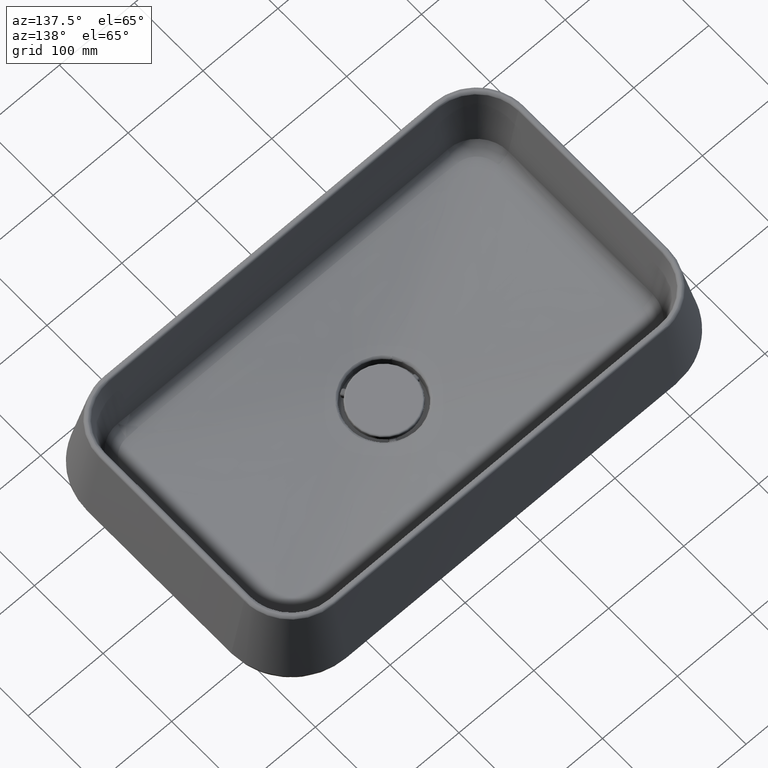
[diagram: clean part render]
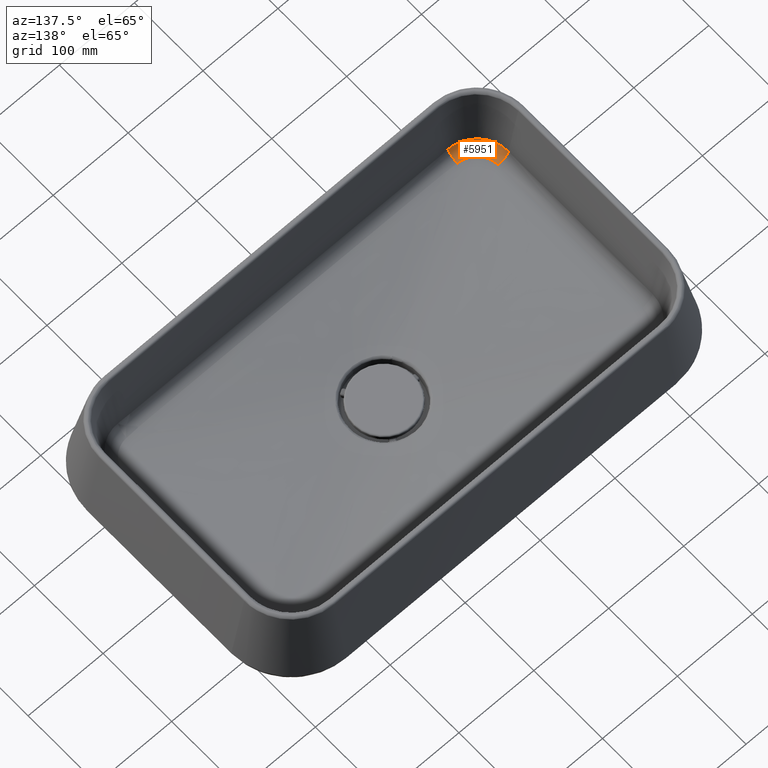
[diagram: same view with one face highlighted and labeled with its STEP entity id]
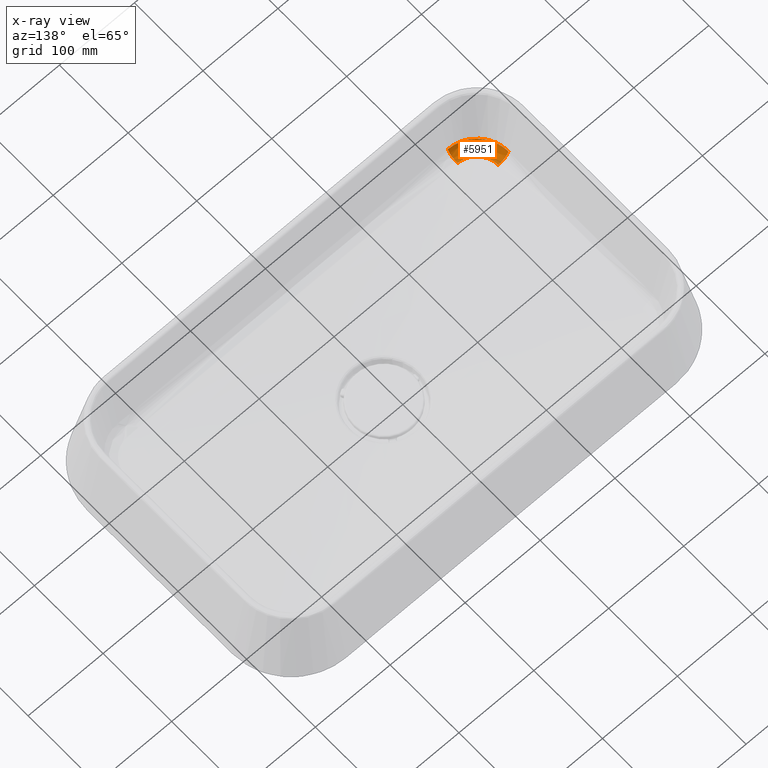
[diagram: x-ray of the same camera — body ghosted, the highlighted face saturated]
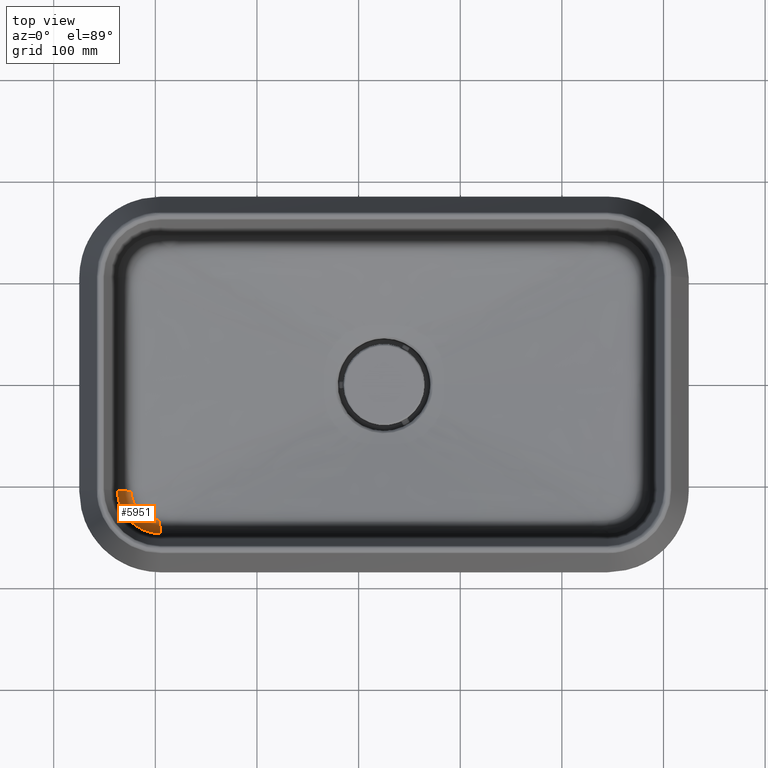
[diagram: same view with one face highlighted and labeled with its STEP entity id]
A machine part, auxiliary view. The second image highlights one B-rep face of the part: STEP entity #5951.
The next image is the same camera in x-ray: the body ghosted, the highlighted face saturated — about 0% of this face is hidden behind the body in this view.
A second angle (top view) of the same face is appended — the face is thin or edge-on in the first view.
In plain terms, the highlighted face is a freeform B-spline surface patch.
Its self-contained STEP definition (entity closure, byte-faithful):
#208 = CARTESIAN_POINT ( 'NONE',  ( 100.0939456887400070, 52.89387457231580925, 21.93821845887429944 ) ) ;
#394 = CARTESIAN_POINT ( 'NONE',  ( 104.3489253185390311, 66.10655205733390005, 9.499880502668668569 ) ) ;
#461 = CARTESIAN_POINT ( 'NONE',  ( 104.4900496643799954, 54.88050602474310580, 10.68974305179930084 ) ) ;
#737 = CARTESIAN_POINT ( 'NONE',  ( 88.86642701142611145, 56.07154558862627880, 22.14436534914068133 ) ) ;
#1097 = CARTESIAN_POINT ( 'NONE',  ( 68.48088802336994263, 73.85753964995247145, 22.34548647760664863 ) ) ;
#1219 = CARTESIAN_POINT ( 'NONE',  ( 99.83690863588098807, 53.12415250317245352, 21.93497582477540320 ) ) ;
#1255 = ORIENTED_EDGE ( 'NONE', *, *, #14023, .F. ) ;
#1337 = CARTESIAN_POINT ( 'NONE',  ( 63.70574184948614516, 86.43931351892953785, 22.32967846739263962 ) ) ;
#1526 =( BOUNDED_CURVE ( )  B_SPLINE_CURVE ( 2, ( #18969, #21077, #20838 ),
 .UNSPECIFIED., .F., .F. ) 
 B_SPLINE_CURVE_WITH_KNOTS ( ( 3, 3 ),
 ( 0.0000000000000000000, 21.48135058712560053 ),
 .UNSPECIFIED. ) 
 CURVE ( )  GEOMETRIC_REPRESENTATION_ITEM ( )  RATIONAL_B_SPLINE_CURVE ( ( 1.000000000000000000, 0.7945275625414980336, 1.000000000000000000 ) ) 
 REPRESENTATION_ITEM ( '' )  );
#1580 = CARTESIAN_POINT ( 'NONE',  ( 63.03646925134162871, 90.84956310242657196, 22.30899613318877073 ) ) ;
#1702 = CARTESIAN_POINT ( 'NONE',  ( 63.50334774395690829, 87.45547082532353045, 22.32569987706909131 ) ) ;
#1758 = CARTESIAN_POINT ( 'NONE',  ( 95.90975975865799796, 67.23920757658079594, 9.783000347813569419 ) ) ;
#2137 = CARTESIAN_POINT ( 'NONE',  ( 76.24335910368587577, 94.83268213099105992, 9.950044693791941341 ) ) ;
#2717 = CARTESIAN_POINT ( 'NONE',  ( 80.60891401675011991, 60.58574310402496366, 22.25443099515818801 ) ) ;
#2735 =( BOUNDED_SURFACE ( )  B_SPLINE_SURFACE ( 2, 3, ( 
 ( #6013, #208, #7754, #13586, #13458, #9878, #21000, #7880, #17420, #22983 ),
 ( #461, #15575, #11857, #23108, #6141, #17789, #18272, #12339, #10608, #23955 ),
 ( #16061, #6631, #23599, #14202, #21737, #19879, #16300, #21624, #10359, #14562 ) ),
 .UNSPECIFIED., .F., .F., .T. ) 
 B_SPLINE_SURFACE_WITH_KNOTS ( ( 3, 3 ),
 ( 4, 1, 1, 1, 1, 1, 1, 4 ),
 ( 0.0000000000000000000, 21.48135058712560053 ),
 ( 588.0338949683419969, 597.5934497710310325, 603.3058128613049576, 609.3277353543110166, 615.3514111535630491, 621.0672197274119526, 626.5407828582680168, 631.0509787103790131 ),
 .UNSPECIFIED. ) 
 GEOMETRIC_REPRESENTATION_ITEM ( )  RATIONAL_B_SPLINE_SURFACE ( (
 ( 1.000000000000000000, 1.000000000000000000, 1.000000000000000000, 0.9999999999999990008, 0.9999999999999980016, 1.000000000000000000, 1.000000000000000000, 0.9999999999999990008, 1.000000000000000000, 1.000000000000000000),
 ( 0.7989810238591299463, 0.7983950872079540462, 0.7968936208703829571, 0.7951651314006470406, 0.7941127352122789862, 0.7935543652856339447, 0.7934813291945530533, 0.7938292711343499786, 0.7942798945050020265, 0.7945275625414980336),
 ( 1.000000000000000000, 1.000000000000000000, 1.000000000000000000, 0.9999999999999990008, 0.9999999999999980016, 1.000000000000000000, 1.000000000000000000, 0.9999999999999990008, 1.000000000000000000, 1.000000000000000000) ) ) 
 REPRESENTATION_ITEM ( '' )  SURFACE ( )  );
#2832 = CARTESIAN_POINT ( 'NONE',  ( 67.17926822852221846, 76.32332914261981216, 22.34764702751154530 ) ) ;
#2956 = CARTESIAN_POINT ( 'NONE',  ( 71.51288546102652788, 69.21631523085801518, 22.33302789975152791 ) ) ;
#3078 = CARTESIAN_POINT ( 'NONE',  ( 66.30408819739065507, 78.22521874896575866, 22.34748736661784108 ) ) ;
#3205 = CARTESIAN_POINT ( 'NONE',  ( 63.03568694733049682, 90.85756583890309912, 22.30895138323814209 ) ) ;
#3499 = CARTESIAN_POINT ( 'NONE',  ( 84.57325487992677893, 74.46036605588930968, 9.976192353328169560 ) ) ;
#4444 = CARTESIAN_POINT ( 'NONE',  ( 64.25556198985715639, 84.09334726962472928, 22.33760642649369643 ) ) ;
#4682 = CARTESIAN_POINT ( 'NONE',  ( 89.00805475640437692, 56.01352554508004999, 22.14214912810558999 ) ) ;
#4801 = CARTESIAN_POINT ( 'NONE',  ( 79.47396314452385013, 61.41466737788644537, 22.26663984095715776 ) ) ;
#5108 = CARTESIAN_POINT ( 'NONE',  ( 76.24335910368587577, 94.83268213099105992, 9.950044693791941341 ) ) ;
#5224 = CARTESIAN_POINT ( 'NONE',  ( 76.26173094074769665, 93.27863251811339751, 9.965763684219519192 ) ) ;
#5371 = EDGE_CURVE ( 'NONE', #6116, #6455, #21749, .T. ) ;
#5408 = CARTESIAN_POINT ( 'NONE',  ( 62.83645563311582549, 94.99999999999958789, 22.28212887665320707 ) ) ;
#5543 = EDGE_CURVE ( 'NONE', #23139, #6116, #13797, .T. ) ;
#5591 = CARTESIAN_POINT ( 'NONE',  ( 78.02498267215119654, 84.59404530176891512, 10.01304561755510036 ) ) ;
#5951 = ADVANCED_FACE ( 'NONE', ( #8261 ), #2735, .T. ) ;
#6013 = CARTESIAN_POINT ( 'NONE',  ( 105.0000000000000000, 52.92205210554990913, 21.79668715871990159 ) ) ;
#6116 = VERTEX_POINT ( 'NONE', #12645 ) ;
#6141 = CARTESIAN_POINT ( 'NONE',  ( 76.50130571328831763, 66.23010744019150309, 11.00523741971669978 ) ) ;
#6455 = VERTEX_POINT ( 'NONE', #2137 ) ;
#6537 = CARTESIAN_POINT ( 'NONE',  ( 76.07848246528750735, 64.31143787995915773, 22.29887910444648469 ) ) ;
#6631 = CARTESIAN_POINT ( 'NONE',  ( 101.1044203776060044, 66.18501813718559390, 9.632780365403039724 ) ) ;
#6656 = CARTESIAN_POINT ( 'NONE',  ( 67.49347268923455090, 75.70026343793735180, 22.34731032698645592 ) ) ;
#6778 = CARTESIAN_POINT ( 'NONE',  ( 88.90022021880876935, 56.05765774651096933, 22.14383744019058042 ) ) ;
#6894 = CARTESIAN_POINT ( 'NONE',  ( 64.43913638723527981, 83.42806877663585396, 22.33943896599268797 ) ) ;
#7083 = EDGE_LOOP ( 'NONE', ( #20457, #8744, #14489, #1255 ) ) ;
#7258 = CARTESIAN_POINT ( 'NONE',  ( 63.77667863150877992, 86.10294590479868759, 22.33093497778362035 ) ) ;
#7754 = CARTESIAN_POINT ( 'NONE',  ( 92.25312690219129763, 54.25491971801889690, 22.10061418710330017 ) ) ;
#7880 = CARTESIAN_POINT ( 'NONE',  ( 63.25061504769420395, 87.56328616274271326, 22.32896019635940377 ) ) ;
#8261 = FACE_OUTER_BOUND ( 'NONE', #7083, .T. ) ;
#8404 = CARTESIAN_POINT ( 'NONE',  ( 88.93256788792372447, 56.04438611469611686, 22.14333166265243591 ) ) ;
#8744 = ORIENTED_EDGE ( 'NONE', *, *, #5543, .T. ) ;
#8772 = CARTESIAN_POINT ( 'NONE',  ( 65.50461868126441800, 80.14284597712028813, 22.34615193086874285 ) ) ;
#8836 = CARTESIAN_POINT ( 'NONE',  ( 76.57841652802390797, 89.83988160855251692, 9.993062804075009353 ) ) ;
#8959 = CARTESIAN_POINT ( 'NONE',  ( 104.3489253185390311, 66.10655205733390005, 9.499880502668668569 ) ) ;
#9370 = CARTESIAN_POINT ( 'NONE',  ( 63.04198334108827595, 90.79354298626866182, 22.30930873741317910 ) ) ;
#9878 = CARTESIAN_POINT ( 'NONE',  ( 69.37443887013070309, 71.82762748192949687, 22.34632459094139989 ) ) ;
#10146 = CARTESIAN_POINT ( 'NONE',  ( 95.76178062818188153, 53.88476663112572851, 22.02193178874265911 ) ) ;
#10264 = CARTESIAN_POINT ( 'NONE',  ( 77.81967192717326043, 62.75853197070031797, 22.28302221018379470 ) ) ;
#10359 = CARTESIAN_POINT ( 'NONE',  ( 76.26173094074769665, 93.27863251811339751, 9.965763684219519192 ) ) ;
#10383 = CARTESIAN_POINT ( 'NONE',  ( 89.15906328541910852, 55.95223045336195611, 22.13977451118075379 ) ) ;
#10506 = CARTESIAN_POINT ( 'NONE',  ( 73.26904916791650635, 67.09436346616155333, 22.32191612399677894 ) ) ;
#10608 = CARTESIAN_POINT ( 'NONE',  ( 64.83296029814539452, 92.68107500387672815, 11.00044874758860125 ) ) ;
#10632 = CARTESIAN_POINT ( 'NONE',  ( 66.16664240382820594, 78.54598301205420796, 22.34731665529516675 ) ) ;
#10749 = CARTESIAN_POINT ( 'NONE',  ( 62.92133620278486461, 92.03080306350774720, 22.30238501805744988 ) ) ;
#10871 = CARTESIAN_POINT ( 'NONE',  ( 63.38576724911321492, 88.13706363245964326, 22.32274108556736181 ) ) ;
#11105 = CARTESIAN_POINT ( 'NONE',  ( 62.83602993242806889, 94.77164406943776953, 22.28454314522458546 ) ) ;
#11857 = CARTESIAN_POINT ( 'NONE',  ( 92.55941154270010429, 56.26934903434860757, 10.90556681463520050 ) ) ;
#12004 = CARTESIAN_POINT ( 'NONE',  ( 64.00517614517252696, 85.09618036240793515, 22.33444932847543640 ) ) ;
#12131 = CARTESIAN_POINT ( 'NONE',  ( 88.87865597387536809, 56.06651565349592659, 22.14417439788672226 ) ) ;
#12250 = CARTESIAN_POINT ( 'NONE',  ( 69.19900028150594551, 72.66444908294074878, 22.34318558094740936 ) ) ;
#12339 = CARTESIAN_POINT ( 'NONE',  ( 65.24289416419321697, 87.84013039482729823, 11.01245994770740388 ) ) ;
#12368 = CARTESIAN_POINT ( 'NONE',  ( 102.4838529405152769, 52.90920335304456046, 21.86955605520862989 ) ) ;
#12490 = CARTESIAN_POINT ( 'NONE',  ( 75.28289191070105346, 65.08328590143476333, 22.30554700186537076 ) ) ;
#12645 = CARTESIAN_POINT ( 'NONE',  ( 104.3489253185390311, 66.10655205733390005, 9.499880502668668569 ) ) ;
#12848 = CARTESIAN_POINT ( 'NONE',  ( 63.04943670940767220, 90.71884706670044807, 22.30972382189884939 ) ) ;
#12969 = CARTESIAN_POINT ( 'NONE',  ( 63.09658855959368395, 90.27062619115265818, 22.31217302128644064 ) ) ;
#13458 = CARTESIAN_POINT ( 'NONE',  ( 75.16430543391599883, 64.71903155599379431, 22.31060270868540130 ) ) ;
#13586 = CARTESIAN_POINT ( 'NONE',  ( 82.36844693090941405, 59.05135756917869827, 22.23894304942910338 ) ) ;
#13797 =( BOUNDED_CURVE ( )  B_SPLINE_CURVE ( 2, ( #18831, #16984, #394 ),
 .UNSPECIFIED., .F., .F. ) 
 B_SPLINE_CURVE_WITH_KNOTS ( ( 3, 3 ),
 ( 0.0000000000000000000, 21.48135058712560053 ),
 .UNSPECIFIED. ) 
 CURVE ( )  GEOMETRIC_REPRESENTATION_ITEM ( )  RATIONAL_B_SPLINE_CURVE ( ( 1.000000000000000000, 0.7989810238591299463, 1.000000000000000000 ) ) 
 REPRESENTATION_ITEM ( '' )  );
#14023 = EDGE_CURVE ( 'NONE', #20916, #6455, #1526, .T. ) ;
#14105 = CARTESIAN_POINT ( 'NONE',  ( 75.62212555412395432, 64.74989496525154209, 22.30274212957544222 ) ) ;
#14202 = CARTESIAN_POINT ( 'NONE',  ( 89.35621168871460895, 70.58798499714350783, 9.910389264730719461 ) ) ;
#14489 = ORIENTED_EDGE ( 'NONE', *, *, #5371, .T. ) ;
#14562 = CARTESIAN_POINT ( 'NONE',  ( 76.24335910368590419, 94.83268213099101729, 9.950044693791941341 ) ) ;
#15575 = CARTESIAN_POINT ( 'NONE',  ( 99.90517863270289922, 54.91646352966849065, 10.80451851502240146 ) ) ;
#15845 = CARTESIAN_POINT ( 'NONE',  ( 75.20251083691540828, 65.16323392374216894, 22.30620320046296357 ) ) ;
#15963 = CARTESIAN_POINT ( 'NONE',  ( 90.06595699625000861, 55.59635940880544780, 22.12525947035993568 ) ) ;
#16061 = CARTESIAN_POINT ( 'NONE',  ( 104.3489253185390169, 66.10655205733390005, 9.499880502668661464 ) ) ;
#16088 = CARTESIAN_POINT ( 'NONE',  ( 75.39567670305414993, 64.97172428405694689, 22.30462084410747892 ) ) ;
#16209 = CARTESIAN_POINT ( 'NONE',  ( 66.51325904380379939, 77.74533624353166772, 22.34769257436402157 ) ) ;
#16300 = CARTESIAN_POINT ( 'NONE',  ( 78.02498267215119654, 84.59404530176891512, 10.01304561755510036 ) ) ;
#16328 = CARTESIAN_POINT ( 'NONE',  ( 65.03902047211742854, 81.44593971815069722, 22.34412000694999989 ) ) ;
#16500 = CARTESIAN_POINT ( 'NONE',  ( 62.83645563311582549, 94.99999999999958789, 22.28212887665320707 ) ) ;
#16510 = CARTESIAN_POINT ( 'NONE',  ( 89.35621168871460895, 70.58798499714350783, 9.910389264730719461 ) ) ;
#16665 = CARTESIAN_POINT ( 'NONE',  ( 104.9999999999996447, 52.92205210554990202, 21.79668715871990159 ) ) ;
#16681 = CARTESIAN_POINT ( 'NONE',  ( 63.03508829800184543, 90.86369483003414871, 22.30891710257377980 ) ) ;
#16984 = CARTESIAN_POINT ( 'NONE',  ( 104.4900496643799954, 54.88050602474310580, 10.68974305179930084 ) ) ;
#17420 = CARTESIAN_POINT ( 'NONE',  ( 62.83342849168600708, 92.68595417528939606, 22.29923668662139846 ) ) ;
#17789 = CARTESIAN_POINT ( 'NONE',  ( 71.04315931189749733, 72.96165251513089345, 11.01904244603990435 ) ) ;
#17935 = CARTESIAN_POINT ( 'NONE',  ( 86.46759564502212925, 57.05924847941752631, 22.18180136933235502 ) ) ;
#18057 = CARTESIAN_POINT ( 'NONE',  ( 66.73136359331248002, 77.26941967853466053, 22.34774520439692225 ) ) ;
#18180 = CARTESIAN_POINT ( 'NONE',  ( 66.09815529658388300, 78.70863503486374668, 22.34721297896792791 ) ) ;
#18272 = CARTESIAN_POINT ( 'NONE',  ( 67.25142420069521165, 80.45393660055279383, 11.02059210555209923 ) ) ;
#18302 = CARTESIAN_POINT ( 'NONE',  ( 62.83535144073270118, 94.31905737020589697, 22.28798051361437160 ) ) ;
#18417 = CARTESIAN_POINT ( 'NONE',  ( 63.16594999681696265, 89.67294462935880972, 22.31532846706673112 ) ) ;
#18831 = CARTESIAN_POINT ( 'NONE',  ( 104.9999999999996447, 52.92205210554990202, 21.79668715871990159 ) ) ;
#18969 = CARTESIAN_POINT ( 'NONE',  ( 62.83645563311582549, 94.99999999999958789, 22.28212887665320707 ) ) ;
#19349 = EDGE_CURVE ( 'NONE', #23139, #20916, #23206, .T. ) ;
#19539 = CARTESIAN_POINT ( 'NONE',  ( 91.62271886140892718, 55.04214348076626351, 22.09911077362484377 ) ) ;
#19665 = CARTESIAN_POINT ( 'NONE',  ( 104.9999999999996447, 52.92205210554990202, 21.79668715871990159 ) ) ;
#19786 = CARTESIAN_POINT ( 'NONE',  ( 84.07545966081828226, 58.30438232003439936, 22.21394265881760788 ) ) ;
#19879 = CARTESIAN_POINT ( 'NONE',  ( 80.71697071551660940, 79.26587453057989308, 10.00900932235940033 ) ) ;
#20031 = CARTESIAN_POINT ( 'NONE',  ( 75.23465055100629684, 65.13123630167565636, 22.30594109815272219 ) ) ;
#20150 = CARTESIAN_POINT ( 'NONE',  ( 63.23496343838687039, 89.16076542096581647, 22.31787127681663563 ) ) ;
#20268 = CARTESIAN_POINT ( 'NONE',  ( 63.06469070228910567, 90.56944778913353389, 22.31054808979491355 ) ) ;
#20448 = CARTESIAN_POINT ( 'NONE',  ( 101.1044203776060044, 66.18501813718559390, 9.632780365403039724 ) ) ;
#20457 = ORIENTED_EDGE ( 'NONE', *, *, #19349, .F. ) ;
#20838 = CARTESIAN_POINT ( 'NONE',  ( 76.24335910368587577, 94.83268213099105992, 9.950044693791941341 ) ) ;
#20916 = VERTEX_POINT ( 'NONE', #16500 ) ;
#21000 = CARTESIAN_POINT ( 'NONE',  ( 65.36301643971499686, 79.74875440247849667, 22.35073053979630231 ) ) ;
#21077 = CARTESIAN_POINT ( 'NONE',  ( 64.82701599080179733, 94.86747604407440804, 10.99310004277869979 ) ) ;
#21624 = CARTESIAN_POINT ( 'NONE',  ( 76.57841652802389376, 89.83988160855251692, 9.993062804075011130 ) ) ;
#21648 = CARTESIAN_POINT ( 'NONE',  ( 89.46121070865413571, 55.83134251631435063, 22.13498708600653941 ) ) ;
#21737 = CARTESIAN_POINT ( 'NONE',  ( 84.57325487992679314, 74.46036605588929547, 9.976192353328169560 ) ) ;
#21749 = B_SPLINE_CURVE_WITH_KNOTS ( 'NONE', 3,
 ( #8959, #20448, #1758, #16510, #3499, #24042, #5591, #8836, #5224, #5108 ),
 .UNSPECIFIED., .F., .F.,
 ( 4, 1, 1, 1, 1, 1, 1, 4 ),
 ( 0.0000000000000000000, 0.2222269380233992397, 0.3550198331561696952, 0.4950089251438568039, 0.6350387755022527392, 0.7679117663382940551, 0.8951533795466577459, 1.000000000000000000 ),
 .UNSPECIFIED. ) ;
#21769 = CARTESIAN_POINT ( 'NONE',  ( 76.47537649758348266, 63.94462096673597529, 22.29538691822476792 ) ) ;
#21890 = CARTESIAN_POINT ( 'NONE',  ( 77.27626944499697004, 63.22319514912521043, 22.28816118334736629 ) ) ;
#22248 = CARTESIAN_POINT ( 'NONE',  ( 63.67159651619029859, 86.60624663565967296, 22.32903868186450680 ) ) ;
#22489 = CARTESIAN_POINT ( 'NONE',  ( 62.87818934727461340, 92.94890499759449654, 22.29690145003081980 ) ) ;
#22983 = CARTESIAN_POINT ( 'NONE',  ( 62.83645563311579707, 94.99999999999960210, 22.28212887665319997 ) ) ;
#23108 = CARTESIAN_POINT ( 'NONE',  ( 83.28063392885051996, 60.84940912433810212, 10.97503119962819973 ) ) ;
#23139 = VERTEX_POINT ( 'NONE', #16665 ) ;
#23206 = B_SPLINE_CURVE_WITH_KNOTS ( 'NONE', 3,
 ( #19665, #12368, #1219, #10146, #23862, #23739, #19539, #23501, #15963, #21648, #10383, #4682, #8404, #6778, #12131, #737, #17935, #19786, #2717, #4801, #10264, #21890, #21769, #6537, #14105, #16088, #12490, #20031, #15845, #23624, #10506, #2956, #12250, #1097, #6656, #2832, #18057, #16209, #3078, #10632, #18180, #8772, #16328, #6894, #4444, #12004, #23380, #7258, #1337, #22248, #1702, #10871, #20150, #18417, #12969, #20268, #12848, #9370, #23980, #1580, #3205, #24217, #16681, #10749, #22489, #18302, #11105, #5408 ),
 .UNSPECIFIED., .F., .F.,
 ( 4, 2, 2, 2, 1, 1, 1, 1, 1, 2, 2, 2, 2, 2, 1, 1, 1, 1, 2, 2, 2, 2, 2, 1, 2, 2, 2, 2, 1, 2, 2, 2, 1, 1, 1, 1, 1, 1, 1, 2, 2, 2, 4 ),
 ( 0.0000000000000000000, 0.1249999999999609201, 0.1874999999999413802, 0.2187499999999313327, 0.2343749999999263089, 0.2421874999999235334, 0.2460937499999221456, 0.2480468749999211742, 0.2490234374999209521, 0.2495117187499208689, 0.2499999999999207578, 0.3749999999999014677, 0.4374999999998917533, 0.4687499999998864242, 0.4843749999998837596, 0.4921874999998826494, 0.4960937499998820943, 0.4980468749998820388, 0.4990234374998817612, 0.4999999999998815392, 0.6249999999998708811, 0.6874999999998653299, 0.7187499999998625544, 0.7343749999998614442, 0.7421874999998610001, 0.7499999999998605560, 0.8124999999998574474, 0.8437499999998558931, 0.8593749999998551159, 0.8671874999998547828, 0.8749999999998544498, 0.9062499999998540057, 0.9218749999998537836, 0.9296874999998534506, 0.9335937499998528954, 0.9355468749998526734, 0.9365234374998526734, 0.9370117187498525624, 0.9372558593748523403, 0.9373779296873524514, 0.9374999999998526734, 0.9687499999999262812, 1.000000000000000000 ),
 .UNSPECIFIED. ) ;
#23380 = CARTESIAN_POINT ( 'NONE',  ( 63.88622401403826245, 85.59882520474502599, 22.33276870727389962 ) ) ;
#23501 = CARTESIAN_POINT ( 'NONE',  ( 90.58484606269438189, 55.40653191380894071, 22.11665963072306695 ) ) ;
#23599 = CARTESIAN_POINT ( 'NONE',  ( 95.90975975865799796, 67.23920757658079594, 9.783000347813569419 ) ) ;
#23624 = CARTESIAN_POINT ( 'NONE',  ( 75.18525728068320291, 65.18044094994679938, 22.30634364304459183 ) ) ;
#23739 = CARTESIAN_POINT ( 'NONE',  ( 92.31475269806247752, 54.81958199488625638, 22.08694596512673414 ) ) ;
#23862 = CARTESIAN_POINT ( 'NONE',  ( 94.38651946642482926, 54.21119369134045485, 22.04905482833457597 ) ) ;
#23955 = CARTESIAN_POINT ( 'NONE',  ( 64.82701599080179733, 94.86747604407440804, 10.99310004277869979 ) ) ;
#23980 = CARTESIAN_POINT ( 'NONE',  ( 63.03830005021072935, 90.83088991151872449, 22.30910045753599391 ) ) ;
#24042 = CARTESIAN_POINT ( 'NONE',  ( 80.71697071551660940, 79.26587453057989308, 10.00900932235940033 ) ) ;
#24217 = CARTESIAN_POINT ( 'NONE',  ( 63.03516592776314553, 90.86290098314846375, 22.30892154115635861 ) ) ;